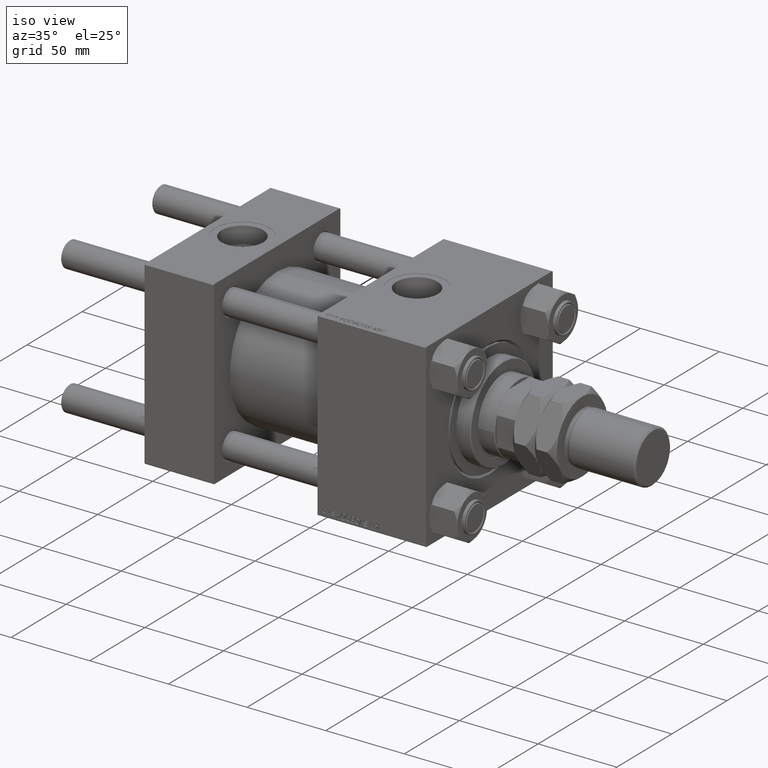
[diagram: clean part render]
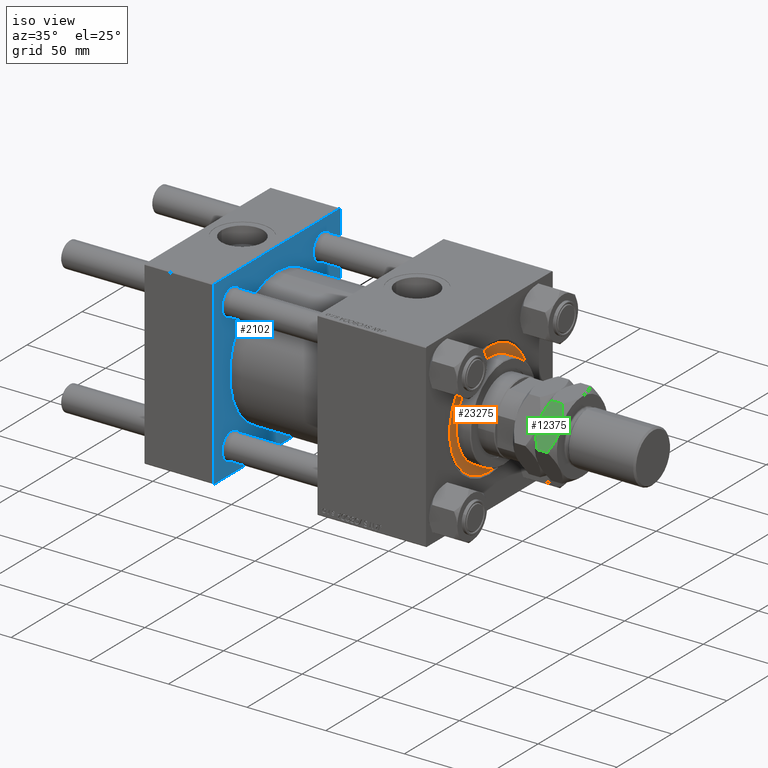
[diagram: same view with three faces highlighted in distinct colors, each labeled with its STEP entity id]
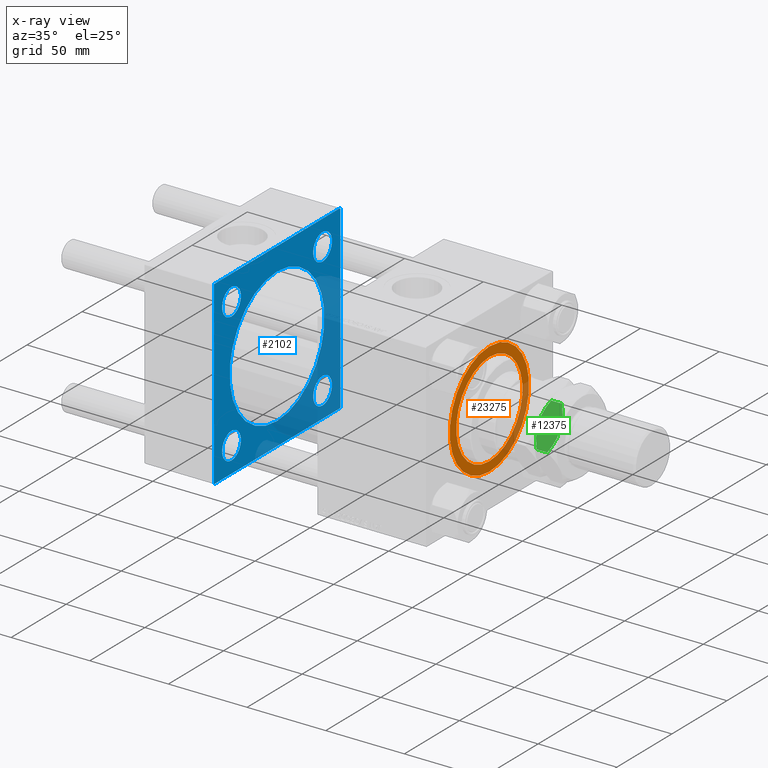
[diagram: x-ray of the same camera — body ghosted, the three highlighted faces saturated]
A machine part, iso view with three faces highlighted in distinct colors.
The next image is the same camera in x-ray (body ghosted, the three faces saturated) — at least one of them is partly hidden behind the body in this view.
Their STEP definitions:

[orange] entity #23275 — the highlighted planar face has unit normal (1, 0, -0).
#34 = ORIENTED_EDGE ( 'NONE', *, *, #8283, .T. ) ;
#1244 = DIRECTION ( 'NONE',  ( 0.000000000000000000, 0.000000000000000000, 1.000000000000000000 ) ) ;
#4501 = VERTEX_POINT ( 'NONE', #34404 ) ;
#4779 = ORIENTED_EDGE ( 'NONE', *, *, #15069, .F. ) ;
#6774 = CIRCLE ( 'NONE', #46811, 30.00000000000000000 ) ;
#6826 = ORIENTED_EDGE ( 'NONE', *, *, #39144, .F. ) ;
#8283 = EDGE_CURVE ( 'NONE', #52019, #4501, #28445, .T. ) ;
#8583 = DIRECTION ( 'NONE',  ( 1.000000000000000000, 0.000000000000000000, 0.000000000000000000 ) ) ;
#8763 = AXIS2_PLACEMENT_3D ( 'NONE', #9388, #34779, #8583 ) ;
#9388 = CARTESIAN_POINT ( 'NONE',  ( 0.000000000000000000, 0.000000000000000000, 28.69999999999999929 ) ) ;
#10204 = AXIS2_PLACEMENT_3D ( 'NONE', #43770, #1244, #10225 ) ;
#10225 = DIRECTION ( 'NONE',  ( 1.000000000000000000, 0.000000000000000000, 0.000000000000000000 ) ) ;
#11852 = CARTESIAN_POINT ( 'NONE',  ( 0.000000000000000000, 0.000000000000000000, 28.69999999999999929 ) ) ;
#13345 = CARTESIAN_POINT ( 'NONE',  ( -36.00000000000000000, 0.000000000000000000, 28.69999999999999929 ) ) ;
#14963 = AXIS2_PLACEMENT_3D ( 'NONE', #39875, #31177, #52673 ) ;
#15069 = EDGE_CURVE ( 'NONE', #16555, #52457, #6774, .T. ) ;
#16555 = VERTEX_POINT ( 'NONE', #25904 ) ;
#21790 = EDGE_CURVE ( 'NONE', #4501, #52019, #44472, .T. ) ;
#22128 = DIRECTION ( 'NONE',  ( 1.000000000000000000, 0.000000000000000000, 0.000000000000000000 ) ) ;
#23275 = ADVANCED_FACE ( 'NONE', ( #47785, #23506 ), #35797, .T. ) ;
#23506 = FACE_OUTER_BOUND ( 'NONE', #41749, .T. ) ;
#23591 = DIRECTION ( 'NONE',  ( 0.000000000000000000, 0.000000000000000000, 1.000000000000000000 ) ) ;
#25904 = CARTESIAN_POINT ( 'NONE',  ( -30.00000000000000000, 0.000000000000000000, 28.69999999999999929 ) ) ;
#28445 = CIRCLE ( 'NONE', #40646, 36.00000000000000000 ) ;
#31177 = DIRECTION ( 'NONE',  ( 0.000000000000000000, 0.000000000000000000, 1.000000000000000000 ) ) ;
#31800 = DIRECTION ( 'NONE',  ( 1.000000000000000000, 0.000000000000000000, 0.000000000000000000 ) ) ;
#33589 = EDGE_LOOP ( 'NONE', ( #4779, #6826 ) ) ;
#33711 = CARTESIAN_POINT ( 'NONE',  ( 30.00000000000000000, 3.673940397442059178E-15, 28.69999999999999929 ) ) ;
#34404 = CARTESIAN_POINT ( 'NONE',  ( 36.00000000000000000, 4.408728476930470856E-15, 28.69999999999999929 ) ) ;
#34779 = DIRECTION ( 'NONE',  ( 0.000000000000000000, 0.000000000000000000, 1.000000000000000000 ) ) ;
#35797 = PLANE ( 'NONE',  #14963 ) ;
#39144 = EDGE_CURVE ( 'NONE', #52457, #16555, #46752, .T. ) ;
#39875 = CARTESIAN_POINT ( 'NONE',  ( 0.000000000000000000, 0.000000000000000000, 28.69999999999999929 ) ) ;
#40646 = AXIS2_PLACEMENT_3D ( 'NONE', #11852, #23591, #31800 ) ;
#41749 = EDGE_LOOP ( 'NONE', ( #34, #43476 ) ) ;
#43476 = ORIENTED_EDGE ( 'NONE', *, *, #21790, .T. ) ;
#43770 = CARTESIAN_POINT ( 'NONE',  ( 0.000000000000000000, 0.000000000000000000, 28.69999999999999929 ) ) ;
#44472 = CIRCLE ( 'NONE', #8763, 36.00000000000000000 ) ;
#46139 = DIRECTION ( 'NONE',  ( 0.000000000000000000, 0.000000000000000000, 1.000000000000000000 ) ) ;
#46752 = CIRCLE ( 'NONE', #10204, 30.00000000000000000 ) ;
#46811 = AXIS2_PLACEMENT_3D ( 'NONE', #46935, #46139, #22128 ) ;
#46935 = CARTESIAN_POINT ( 'NONE',  ( 0.000000000000000000, 0.000000000000000000, 28.69999999999999929 ) ) ;
#47785 = FACE_BOUND ( 'NONE', #33589, .T. ) ;
#52019 = VERTEX_POINT ( 'NONE', #13345 ) ;
#52457 = VERTEX_POINT ( 'NONE', #33711 ) ;
#52673 = DIRECTION ( 'NONE',  ( 1.000000000000000000, 0.000000000000000000, -0.000000000000000000 ) ) ;

[blue] entity #2102 — the highlighted planar face has unit normal (-1, 0, 0).
#342 = ORIENTED_EDGE ( 'NONE', *, *, #38765, .T. ) ;
#1679 = DIRECTION ( 'NONE',  ( 0.000000000000000000, 0.000000000000000000, 1.000000000000000000 ) ) ;
#1681 = EDGE_CURVE ( 'NONE', #26242, #23790, #22949, .T. ) ;
#1959 = ORIENTED_EDGE ( 'NONE', *, *, #28649, .T. ) ;
#2102 = ADVANCED_FACE ( 'NONE', ( #43305, #47670, #39768, #7011, #52038, #14667 ), #26958, .F. ) ;
#2105 = VERTEX_POINT ( 'NONE', #35691 ) ;
#2441 = ORIENTED_EDGE ( 'NONE', *, *, #34334, .T. ) ;
#2583 = VERTEX_POINT ( 'NONE', #45391 ) ;
#2730 = VERTEX_POINT ( 'NONE', #31474 ) ;
#2761 = CARTESIAN_POINT ( 'NONE',  ( 44.00000000000000000, 57.49999999999999289, 57.50000000000000711 ) ) ;
#3014 = VECTOR ( 'NONE', #7091, 1000.000000000000114 ) ;
#3396 = CARTESIAN_POINT ( 'NONE',  ( 44.00000000000000000, 0.000000000000000000, 43.00000000000000000 ) ) ;
#3562 = LINE ( 'NONE', #2761, #39302 ) ;
#3985 = VERTEX_POINT ( 'NONE', #44050 ) ;
#4669 = LINE ( 'NONE', #33348, #22811 ) ;
#5000 = CIRCLE ( 'NONE', #25072, 8.500000000000035527 ) ;
#6022 = CARTESIAN_POINT ( 'NONE',  ( 44.00000000000000000, -41.34999999999998721, 41.35000000000000853 ) ) ;
#6494 = CARTESIAN_POINT ( 'NONE',  ( 44.00000000000000000, 57.00000000000000711, 57.50000000000000711 ) ) ;
#6984 = VERTEX_POINT ( 'NONE', #25055 ) ;
#7011 = FACE_BOUND ( 'NONE', #14302, .T. ) ;
#7091 = DIRECTION ( 'NONE',  ( -0.000000000000000000, -0.7071067811865376918, -0.7071067811865573427 ) ) ;
#7386 = ORIENTED_EDGE ( 'NONE', *, *, #49372, .T. ) ;
#8375 = CIRCLE ( 'NONE', #39606, 8.500000000000035527 ) ;
#8665 = DIRECTION ( 'NONE',  ( -1.000000000000000000, 0.000000000000000000, -0.000000000000000000 ) ) ;
#9750 = CARTESIAN_POINT ( 'NONE',  ( 44.00000000000000000, -57.50000000000000711, 57.49999999999999289 ) ) ;
#10216 = VERTEX_POINT ( 'NONE', #53110 ) ;
#10295 = DIRECTION ( 'NONE',  ( -1.000000000000000000, 0.000000000000000000, -0.000000000000000000 ) ) ;
#10615 = ORIENTED_EDGE ( 'NONE', *, *, #34608, .F. ) ;
#10741 = EDGE_CURVE ( 'NONE', #45350, #3985, #41716, .T. ) ;
#10924 = LINE ( 'NONE', #32491, #3014 ) ;
#11025 = CIRCLE ( 'NONE', #31104, 8.500000000000035527 ) ;
#12401 = DIRECTION ( 'NONE',  ( 1.000000000000000000, -0.000000000000000000, 0.000000000000000000 ) ) ;
#12525 = ORIENTED_EDGE ( 'NONE', *, *, #1681, .T. ) ;
#12555 = VECTOR ( 'NONE', #42770, 1000.000000000000114 ) ;
#12707 = VECTOR ( 'NONE', #39229, 1000.000000000000114 ) ;
#12871 = ORIENTED_EDGE ( 'NONE', *, *, #28888, .T. ) ;
#13076 = EDGE_CURVE ( 'NONE', #22843, #13080, #43244, .T. ) ;
#13080 = VERTEX_POINT ( 'NONE', #20595 ) ;
#13197 = DIRECTION ( 'NONE',  ( -1.000000000000000000, 0.000000000000000000, -0.000000000000000000 ) ) ;
#13837 = CARTESIAN_POINT ( 'NONE',  ( 44.00000000000000000, 57.49999999999999289, -57.49999999999999289 ) ) ;
#13875 = CARTESIAN_POINT ( 'NONE',  ( 44.00000000000000000, 5.265981236333618470E-15, -43.00000000000000000 ) ) ;
#13883 = EDGE_CURVE ( 'NONE', #15571, #26055, #23293, .T. ) ;
#14035 = CARTESIAN_POINT ( 'NONE',  ( 44.00000000000000000, -41.34999999999998721, -41.35000000000000853 ) ) ;
#14149 = ORIENTED_EDGE ( 'NONE', *, *, #20417, .T. ) ;
#14302 = EDGE_LOOP ( 'NONE', ( #342, #12525 ) ) ;
#14667 = FACE_OUTER_BOUND ( 'NONE', #19402, .T. ) ;
#14905 = EDGE_CURVE ( 'NONE', #27125, #6984, #5000, .T. ) ;
#15137 = EDGE_CURVE ( 'NONE', #42847, #10216, #22471, .T. ) ;
#15343 = DIRECTION ( 'NONE',  ( -1.000000000000000000, 0.000000000000000000, -0.000000000000000000 ) ) ;
#15571 = VERTEX_POINT ( 'NONE', #13875 ) ;
#15800 = DIRECTION ( 'NONE',  ( 0.000000000000000000, -1.000000000000000000, -1.206764157201257045E-16 ) ) ;
#17118 = AXIS2_PLACEMENT_3D ( 'NONE', #50551, #13197, #29860 ) ;
#17655 = DIRECTION ( 'NONE',  ( 0.000000000000000000, -1.000000000000000000, -1.206764157201257045E-16 ) ) ;
#17656 = CARTESIAN_POINT ( 'NONE',  ( 44.00000000000000000, 41.34999999999999432, 41.35000000000000142 ) ) ;
#17932 = LINE ( 'NONE', #13837, #53548 ) ;
#18145 = DIRECTION ( 'NONE',  ( -1.000000000000000000, 0.000000000000000000, -0.000000000000000000 ) ) ;
#18582 = ORIENTED_EDGE ( 'NONE', *, *, #13076, .T. ) ;
#18903 = DIRECTION ( 'NONE',  ( 0.000000000000000000, 0.000000000000000000, 1.000000000000000000 ) ) ;
#19402 = EDGE_LOOP ( 'NONE', ( #10615, #1959, #25335, #29308, #29160, #32766, #14149, #7386 ) ) ;
#19524 = CIRCLE ( 'NONE', #49991, 8.500000000000035527 ) ;
#19833 = CARTESIAN_POINT ( 'NONE',  ( 44.00000000000000000, 0.000000000000000000, 0.000000000000000000 ) ) ;
#20417 = EDGE_CURVE ( 'NONE', #32680, #2730, #38683, .T. ) ;
#20595 = CARTESIAN_POINT ( 'NONE',  ( 44.00000000000000000, 41.34999999999999432, -32.84999999999997300 ) ) ;
#22165 = CIRCLE ( 'NONE', #29161, 43.00000000000000000 ) ;
#22221 = EDGE_CURVE ( 'NONE', #2583, #43239, #3562, .T. ) ;
#22471 = CIRCLE ( 'NONE', #47688, 8.500000000000035527 ) ;
#22811 = VECTOR ( 'NONE', #29786, 1000.000000000000114 ) ;
#22843 = VERTEX_POINT ( 'NONE', #53557 ) ;
#22949 = CIRCLE ( 'NONE', #31683, 8.500000000000035527 ) ;
#23293 = CIRCLE ( 'NONE', #37231, 43.00000000000000000 ) ;
#23790 = VERTEX_POINT ( 'NONE', #24067 ) ;
#24067 = CARTESIAN_POINT ( 'NONE',  ( 44.00000000000000000, 41.34999999999999432, 32.84999999999997300 ) ) ;
#24296 = EDGE_CURVE ( 'NONE', #10216, #42847, #41132, .T. ) ;
#24884 = EDGE_LOOP ( 'NONE', ( #12871, #51744 ) ) ;
#25055 = CARTESIAN_POINT ( 'NONE',  ( 44.00000000000000000, -41.34999999999998721, -49.85000000000004405 ) ) ;
#25072 = AXIS2_PLACEMENT_3D ( 'NONE', #52718, #15343, #32020 ) ;
#25335 = ORIENTED_EDGE ( 'NONE', *, *, #22221, .F. ) ;
#26055 = VERTEX_POINT ( 'NONE', #3396 ) ;
#26127 = DIRECTION ( 'NONE',  ( 0.000000000000000000, 0.000000000000000000, 1.000000000000000000 ) ) ;
#26142 = DIRECTION ( 'NONE',  ( -1.000000000000000000, 0.000000000000000000, -0.000000000000000000 ) ) ;
#26242 = VERTEX_POINT ( 'NONE', #38533 ) ;
#26415 = DIRECTION ( 'NONE',  ( 0.000000000000000000, 0.000000000000000000, -1.000000000000000000 ) ) ;
#26958 = PLANE ( 'NONE',  #27347 ) ;
#27125 = VERTEX_POINT ( 'NONE', #44044 ) ;
#27347 = AXIS2_PLACEMENT_3D ( 'NONE', #19833, #10295, #39488 ) ;
#27533 = DIRECTION ( 'NONE',  ( 1.000000000000000000, -0.000000000000000000, 0.000000000000000000 ) ) ;
#27542 = VECTOR ( 'NONE', #15800, 1000.000000000000000 ) ;
#28649 = EDGE_CURVE ( 'NONE', #48461, #43239, #29196, .T. ) ;
#28888 = EDGE_CURVE ( 'NONE', #6984, #27125, #19524, .T. ) ;
#29160 = ORIENTED_EDGE ( 'NONE', *, *, #10741, .T. ) ;
#29161 = AXIS2_PLACEMENT_3D ( 'NONE', #45398, #12401, #33149 ) ;
#29196 = LINE ( 'NONE', #45806, #12555 ) ;
#29308 = ORIENTED_EDGE ( 'NONE', *, *, #36731, .T. ) ;
#29782 = VECTOR ( 'NONE', #26415, 1000.000000000000000 ) ;
#29786 = DIRECTION ( 'NONE',  ( 0.000000000000000000, 0.7071067811865474617, -0.7071067811865474617 ) ) ;
#29860 = DIRECTION ( 'NONE',  ( 0.000000000000000000, 0.000000000000000000, 1.000000000000000000 ) ) ;
#30143 = EDGE_CURVE ( 'NONE', #26055, #15571, #22165, .T. ) ;
#30316 = EDGE_CURVE ( 'NONE', #3985, #32680, #10924, .T. ) ;
#30542 = CARTESIAN_POINT ( 'NONE',  ( 44.00000000000000000, -41.34999999999998721, 49.85000000000004405 ) ) ;
#30890 = DIRECTION ( 'NONE',  ( 0.000000000000000000, 0.000000000000000000, 1.000000000000000000 ) ) ;
#31104 = AXIS2_PLACEMENT_3D ( 'NONE', #17656, #8665, #26127 ) ;
#31158 = CARTESIAN_POINT ( 'NONE',  ( 44.00000000000000000, 57.00000000000002132, -57.49999999999999289 ) ) ;
#31474 = CARTESIAN_POINT ( 'NONE',  ( 44.00000000000000000, -57.50000000000000711, -57.00000000000000711 ) ) ;
#31683 = AXIS2_PLACEMENT_3D ( 'NONE', #39353, #36557, #18903 ) ;
#32020 = DIRECTION ( 'NONE',  ( 0.000000000000000000, 0.000000000000000000, 1.000000000000000000 ) ) ;
#32491 = CARTESIAN_POINT ( 'NONE',  ( 44.00000000000000000, -57.50000000000000711, 57.00000000000000711 ) ) ;
#32680 = VERTEX_POINT ( 'NONE', #39512 ) ;
#32766 = ORIENTED_EDGE ( 'NONE', *, *, #30316, .T. ) ;
#33149 = DIRECTION ( 'NONE',  ( 0.000000000000000000, 0.000000000000000000, 1.000000000000000000 ) ) ;
#33348 = CARTESIAN_POINT ( 'NONE',  ( 44.00000000000000000, -57.00000000000000711, -57.50000000000000711 ) ) ;
#34334 = EDGE_CURVE ( 'NONE', #13080, #22843, #8375, .T. ) ;
#34608 = EDGE_CURVE ( 'NONE', #48461, #2105, #17932, .T. ) ;
#34971 = CARTESIAN_POINT ( 'NONE',  ( 44.00000000000000000, 41.34999999999999432, -41.35000000000000142 ) ) ;
#35476 = EDGE_LOOP ( 'NONE', ( #18582, #2441 ) ) ;
#35691 = CARTESIAN_POINT ( 'NONE',  ( 44.00000000000000000, -57.00000000000000711, -57.50000000000000711 ) ) ;
#36327 = DIRECTION ( 'NONE',  ( 0.000000000000000000, 0.000000000000000000, -1.000000000000000000 ) ) ;
#36557 = DIRECTION ( 'NONE',  ( -1.000000000000000000, 0.000000000000000000, -0.000000000000000000 ) ) ;
#36731 = EDGE_CURVE ( 'NONE', #2583, #45350, #40299, .T. ) ;
#37097 = EDGE_LOOP ( 'NONE', ( #42796, #42808 ) ) ;
#37231 = AXIS2_PLACEMENT_3D ( 'NONE', #53134, #27533, #40593 ) ;
#38533 = CARTESIAN_POINT ( 'NONE',  ( 44.00000000000000000, 41.34999999999999432, 49.85000000000003695 ) ) ;
#38683 = LINE ( 'NONE', #9750, #29782 ) ;
#38765 = EDGE_CURVE ( 'NONE', #23790, #26242, #11025, .T. ) ;
#39128 = CARTESIAN_POINT ( 'NONE',  ( 44.00000000000000000, 57.49999999999999289, -57.00000000000000711 ) ) ;
#39229 = DIRECTION ( 'NONE',  ( 0.000000000000000000, -0.7071067811865573427, 0.7071067811865376918 ) ) ;
#39302 = VECTOR ( 'NONE', #36327, 1000.000000000000000 ) ;
#39353 = CARTESIAN_POINT ( 'NONE',  ( 44.00000000000000000, 41.34999999999999432, 41.35000000000000142 ) ) ;
#39488 = DIRECTION ( 'NONE',  ( -0.000000000000000000, 0.000000000000000000, 1.000000000000000000 ) ) ;
#39512 = CARTESIAN_POINT ( 'NONE',  ( 44.00000000000000000, -57.50000000000000711, 57.00000000000000711 ) ) ;
#39545 = CARTESIAN_POINT ( 'NONE',  ( 44.00000000000000000, 57.00000000000000711, 57.50000000000000711 ) ) ;
#39606 = AXIS2_PLACEMENT_3D ( 'NONE', #34971, #51589, #30890 ) ;
#39768 = FACE_BOUND ( 'NONE', #37097, .T. ) ;
#40299 = LINE ( 'NONE', #6494, #12707 ) ;
#40593 = DIRECTION ( 'NONE',  ( 0.000000000000000000, 0.000000000000000000, 1.000000000000000000 ) ) ;
#41132 = CIRCLE ( 'NONE', #49841, 8.500000000000035527 ) ;
#41716 = LINE ( 'NONE', #44724, #27542 ) ;
#42759 = DIRECTION ( 'NONE',  ( 0.000000000000000000, 0.000000000000000000, 1.000000000000000000 ) ) ;
#42770 = DIRECTION ( 'NONE',  ( -0.000000000000000000, 0.7071067811865376918, 0.7071067811865573427 ) ) ;
#42796 = ORIENTED_EDGE ( 'NONE', *, *, #24296, .T. ) ;
#42808 = ORIENTED_EDGE ( 'NONE', *, *, #15137, .T. ) ;
#42847 = VERTEX_POINT ( 'NONE', #30542 ) ;
#43226 = DIRECTION ( 'NONE',  ( 0.000000000000000000, 0.000000000000000000, 1.000000000000000000 ) ) ;
#43239 = VERTEX_POINT ( 'NONE', #39128 ) ;
#43244 = CIRCLE ( 'NONE', #17118, 8.500000000000035527 ) ;
#43305 = FACE_BOUND ( 'NONE', #24884, .T. ) ;
#44044 = CARTESIAN_POINT ( 'NONE',  ( 44.00000000000000000, -41.34999999999998721, -32.84999999999997300 ) ) ;
#44050 = CARTESIAN_POINT ( 'NONE',  ( 44.00000000000000000, -57.00000000000003553, 57.49999999999999289 ) ) ;
#44724 = CARTESIAN_POINT ( 'NONE',  ( 44.00000000000000000, 57.49999999999999289, 57.50000000000000711 ) ) ;
#45350 = VERTEX_POINT ( 'NONE', #39545 ) ;
#45391 = CARTESIAN_POINT ( 'NONE',  ( 44.00000000000000000, 57.49999999999999289, 57.00000000000003553 ) ) ;
#45398 = CARTESIAN_POINT ( 'NONE',  ( 44.00000000000000000, 0.000000000000000000, 0.000000000000000000 ) ) ;
#45806 = CARTESIAN_POINT ( 'NONE',  ( 44.00000000000000000, 57.49999999999999289, -57.00000000000000711 ) ) ;
#46759 = EDGE_LOOP ( 'NONE', ( #48385, #52077 ) ) ;
#47670 = FACE_BOUND ( 'NONE', #35476, .T. ) ;
#47688 = AXIS2_PLACEMENT_3D ( 'NONE', #6022, #52126, #1679 ) ;
#48385 = ORIENTED_EDGE ( 'NONE', *, *, #30143, .F. ) ;
#48461 = VERTEX_POINT ( 'NONE', #31158 ) ;
#49372 = EDGE_CURVE ( 'NONE', #2730, #2105, #4669, .T. ) ;
#49841 = AXIS2_PLACEMENT_3D ( 'NONE', #51218, #26142, #42759 ) ;
#49991 = AXIS2_PLACEMENT_3D ( 'NONE', #14035, #18145, #43226 ) ;
#50551 = CARTESIAN_POINT ( 'NONE',  ( 44.00000000000000000, 41.34999999999999432, -41.35000000000000142 ) ) ;
#51218 = CARTESIAN_POINT ( 'NONE',  ( 44.00000000000000000, -41.34999999999998721, 41.35000000000000853 ) ) ;
#51589 = DIRECTION ( 'NONE',  ( -1.000000000000000000, 0.000000000000000000, -0.000000000000000000 ) ) ;
#51744 = ORIENTED_EDGE ( 'NONE', *, *, #14905, .T. ) ;
#52038 = FACE_BOUND ( 'NONE', #46759, .T. ) ;
#52077 = ORIENTED_EDGE ( 'NONE', *, *, #13883, .F. ) ;
#52126 = DIRECTION ( 'NONE',  ( -1.000000000000000000, 0.000000000000000000, -0.000000000000000000 ) ) ;
#52718 = CARTESIAN_POINT ( 'NONE',  ( 44.00000000000000000, -41.34999999999998721, -41.35000000000000853 ) ) ;
#53110 = CARTESIAN_POINT ( 'NONE',  ( 44.00000000000000000, -41.34999999999998721, 32.84999999999997300 ) ) ;
#53134 = CARTESIAN_POINT ( 'NONE',  ( 44.00000000000000000, 0.000000000000000000, 0.000000000000000000 ) ) ;
#53548 = VECTOR ( 'NONE', #17655, 1000.000000000000000 ) ;
#53557 = CARTESIAN_POINT ( 'NONE',  ( 44.00000000000000000, 41.34999999999999432, -49.85000000000003695 ) ) ;

[green] entity #12375 — the highlighted planar face has unit normal (-0, 0.866, -0.5).
#326 = DIRECTION ( 'NONE',  ( 0.5000000000000003331, 0.8660254037844385966, -0.000000000000000000 ) ) ;
#716 = LINE ( 'NONE', #13791, #29108 ) ;
#1092 = EDGE_LOOP ( 'NONE', ( #43961, #26377, #36726, #1905, #7585, #51767 ) ) ;
#1905 = ORIENTED_EDGE ( 'NONE', *, *, #8011, .F. ) ;
#2118 = CARTESIAN_POINT ( 'NONE',  ( -6.513252209336783949, -22.79768446636225576, 14.68627580135475519 ) ) ;
#2298 = EDGE_CURVE ( 'NONE', #48042, #20806, #716, .T. ) ;
#2654 = CARTESIAN_POINT ( 'NONE',  ( -19.35245248169771060, -15.38496873293516920, 26.36778857186890335 ) ) ;
#2868 = CARTESIAN_POINT ( 'NONE',  ( -11.49999999999999467, -19.91858428704209416, 14.00000000000000000 ) ) ;
#3460 = CARTESIAN_POINT ( 'NONE',  ( -15.51476468404854714, -17.60065881597365944, 27.56483616389684244 ) ) ;
#3963 = CARTESIAN_POINT ( 'NONE',  ( 1.709722276742338234E-15, -26.55811238272278985, 17.55811238272278274 ) ) ;
#4813 = LINE ( 'NONE', #12750, #44047 ) ;
#5344 = B_SPLINE_CURVE_WITH_KNOTS ( 'NONE', 3,
 ( #53269, #36922, #41265, #28752, #53547, #44541, #24908, #49166 ),
 .UNSPECIFIED., .F., .F.,
 ( 4, 2, 2, 4 ),
 ( 0.01376519981810309969, 0.02059946815584628999, 0.02401660232471788253, 0.02743373649358947855 ),
 .UNSPECIFIED. ) ;
#6955 = CARTESIAN_POINT ( 'NONE',  ( -18.37513248879265859, -15.94922469392330555, 15.30784375106604323 ) ) ;
#7253 = VERTEX_POINT ( 'NONE', #32930 ) ;
#7543 = CARTESIAN_POINT ( 'NONE',  ( -21.19663298550257835, -14.32023062262917179, 25.48306204854501189 ) ) ;
#7585 = ORIENTED_EDGE ( 'NONE', *, *, #32783, .T. ) ;
#8011 = EDGE_CURVE ( 'NONE', #42288, #30466, #30501, .T. ) ;
#8374 = DIRECTION ( 'NONE',  ( -0.000000000000000000, -0.000000000000000000, -1.000000000000000000 ) ) ;
#10287 = CARTESIAN_POINT ( 'NONE',  ( -11.49999999999999467, -19.91858428704209416, 14.00000000000000000 ) ) ;
#10553 = CARTESIAN_POINT ( 'NONE',  ( -10.99639501427889066, -20.20934076111341327, 14.00000000000001243 ) ) ;
#11863 = CARTESIAN_POINT ( 'NONE',  ( -19.32386580747566640, -15.40147325699251013, 15.69106848873859050 ) ) ;
#12074 = EDGE_CURVE ( 'NONE', #38370, #7253, #50361, .T. ) ;
#12375 = ADVANCED_FACE ( 'NONE', ( #27378 ), #23287, .F. ) ;
#12750 = CARTESIAN_POINT ( 'NONE',  ( -23.00000000000000000, -13.27905619136138959, 28.00000000000000000 ) ) ;
#13791 = CARTESIAN_POINT ( 'NONE',  ( 3.419413258936889517E-15, -26.55811238272278985, 28.00000000000000000 ) ) ;
#15361 = AXIS2_PLACEMENT_3D ( 'NONE', #50486, #326, #16147 ) ;
#16147 = DIRECTION ( 'NONE',  ( -0.8660254037844384856, 0.5000000000000002220, 0.000000000000000000 ) ) ;
#18206 = CARTESIAN_POINT ( 'NONE',  ( -1.803367014497423648, -25.51693795145500943, 16.51693795145499877 ) ) ;
#18476 = CARTESIAN_POINT ( 'NONE',  ( -3.647547518302289404, -24.45219984114901379, 15.63221142813110731 ) ) ;
#19555 = CARTESIAN_POINT ( 'NONE',  ( -14.02580821503728181, -18.46030823416894151, 27.82274339568302679 ) ) ;
#20086 = CARTESIAN_POINT ( 'NONE',  ( -11.50000000000000533, -19.91858428704208706, 28.00000000000000000 ) ) ;
#20806 = VERTEX_POINT ( 'NONE', #3963 ) ;
#22019 = EDGE_CURVE ( 'NONE', #30466, #48042, #5344, .T. ) ;
#23133 = CARTESIAN_POINT ( 'NONE',  ( -7.485235315951451085, -22.23650975811052888, 14.43516383610316112 ) ) ;
#23287 = PLANE ( 'NONE',  #15361 ) ;
#24146 = CARTESIAN_POINT ( 'NONE',  ( -13.50031108690880721, -18.76370414255229235, 14.00000000000000355 ) ) ;
#24908 = CARTESIAN_POINT ( 'NONE',  ( -0.9006392137919259078, -26.03812809019728647, 24.96187190980275972 ) ) ;
#26377 = ORIENTED_EDGE ( 'NONE', *, *, #2298, .F. ) ;
#27341 = CARTESIAN_POINT ( 'NONE',  ( -11.49999999999999467, -19.91858428704209416, 14.00000000000000000 ) ) ;
#27378 = FACE_OUTER_BOUND ( 'NONE', #1092, .T. ) ;
#27769 = CARTESIAN_POINT ( 'NONE',  ( -16.48674779066321250, -17.03948410772190414, 27.31372419864523593 ) ) ;
#28029 = CARTESIAN_POINT ( 'NONE',  ( -12.00360498572111467, -19.62782781297077150, 28.00000000000000000 ) ) ;
#28525 = CARTESIAN_POINT ( 'NONE',  ( -22.09936078620807365, -13.79904048388689475, 17.03812809019723318 ) ) ;
#28752 = CARTESIAN_POINT ( 'NONE',  ( -4.624867511207331638, -23.88794388016088632, 26.69215624893395500 ) ) ;
#29108 = VECTOR ( 'NONE', #42440, 1000.000000000000000 ) ;
#29496 = B_SPLINE_CURVE_WITH_KNOTS ( 'NONE', 3,
 ( #47658, #18206, #18476, #2118, #23133, #35131, #47927, #51748, #10553, #10287 ),
 .UNSPECIFIED., .F., .F.,
 ( 4, 2, 2, 2, 4 ),
 ( 2.544306848989127910E-07, 0.006882727124394002853, 0.01032396347124855777, 0.01204458164467583220, 0.01376519981810310662 ),
 .UNSPECIFIED. ) ;
#30466 = VERTEX_POINT ( 'NONE', #41724 ) ;
#30501 = B_SPLINE_CURVE_WITH_KNOTS ( 'NONE', 3,
 ( #49266, #7543, #2654, #27769, #3460, #19555, #44374, #36221, #28029, #20086 ),
 .UNSPECIFIED., .F., .F.,
 ( 4, 2, 2, 2, 4 ),
 ( 2.544306848942777738E-07, 0.006882727124394002853, 0.01032396347124855430, 0.01204458164467582700, 0.01376519981810309969 ),
 .UNSPECIFIED. ) ;
#32783 = EDGE_CURVE ( 'NONE', #42288, #7253, #4813, .T. ) ;
#32930 = CARTESIAN_POINT ( 'NONE',  ( -23.00000000000000000, -13.27905619136138959, 17.55811238272277564 ) ) ;
#34633 = EDGE_CURVE ( 'NONE', #20806, #38370, #29496, .T. ) ;
#35131 = CARTESIAN_POINT ( 'NONE',  ( -8.974191784962716412, -21.37686033991523971, 14.17725660431697499 ) ) ;
#36221 = CARTESIAN_POINT ( 'NONE',  ( -12.51003418050900962, -19.33544078103449237, 27.97785245724465852 ) ) ;
#36726 = ORIENTED_EDGE ( 'NONE', *, *, #22019, .F. ) ;
#36922 = CARTESIAN_POINT ( 'NONE',  ( -9.499688913091185682, -21.07346443153188531, 27.99999999999999645 ) ) ;
#38370 = VERTEX_POINT ( 'NONE', #27341 ) ;
#39973 = CARTESIAN_POINT ( 'NONE',  ( -15.46660869709777941, -17.62846168800276558, 14.35317254909357665 ) ) ;
#40502 = CARTESIAN_POINT ( 'NONE',  ( -23.00000000000000000, -13.27905619136138959, 17.55811238272277564 ) ) ;
#41034 = CARTESIAN_POINT ( 'NONE',  ( -21.18561130058603936, -14.32659399538265887, 16.55607787929224983 ) ) ;
#41265 = CARTESIAN_POINT ( 'NONE',  ( -7.533391302902213482, -22.20870688608140497, 27.64682745090640381 ) ) ;
#41724 = CARTESIAN_POINT ( 'NONE',  ( -11.50000000000000533, -19.91858428704208706, 28.00000000000000000 ) ) ;
#42288 = VERTEX_POINT ( 'NONE', #44535 ) ;
#42440 = DIRECTION ( 'NONE',  ( -0.000000000000000000, -0.000000000000000000, -1.000000000000000000 ) ) ;
#43961 = ORIENTED_EDGE ( 'NONE', *, *, #34633, .F. ) ;
#44047 = VECTOR ( 'NONE', #8374, 1000.000000000000000 ) ;
#44374 = CARTESIAN_POINT ( 'NONE',  ( -13.52432111410265314, -18.74984194688868300, 27.88890122221209822 ) ) ;
#44535 = CARTESIAN_POINT ( 'NONE',  ( -23.00000000000000000, -13.27905619136138959, 24.44188761727722436 ) ) ;
#44541 = CARTESIAN_POINT ( 'NONE',  ( -1.814388699413963746, -25.51057457870151524, 25.44392212070774661 ) ) ;
#46467 = CARTESIAN_POINT ( 'NONE',  ( -1.934533906329143444E-16, -26.55811238272279340, 24.44188761727721726 ) ) ;
#47658 = CARTESIAN_POINT ( 'NONE',  ( 1.709722276742338234E-15, -26.55811238272278985, 17.55811238272278274 ) ) ;
#47927 = CARTESIAN_POINT ( 'NONE',  ( -9.475678885897348636, -21.08732662719550532, 14.11109877778791066 ) ) ;
#48042 = VERTEX_POINT ( 'NONE', #46467 ) ;
#49166 = CARTESIAN_POINT ( 'NONE',  ( -1.934533906329143444E-16, -26.55811238272279340, 24.44188761727721726 ) ) ;
#49266 = CARTESIAN_POINT ( 'NONE',  ( -23.00000000000000000, -13.27905619136138959, 24.44188761727722436 ) ) ;
#50361 = B_SPLINE_CURVE_WITH_KNOTS ( 'NONE', 3,
 ( #2868, #24146, #39973, #6955, #11863, #41034, #28525, #40502 ),
 .UNSPECIFIED., .F., .F.,
 ( 4, 2, 2, 4 ),
 ( 0.01376519981810310662, 0.02059946815584628999, 0.02401660232471788253, 0.02743373649358947508 ),
 .UNSPECIFIED. ) ;
#50486 = CARTESIAN_POINT ( 'NONE',  ( -23.00000000000000000, -13.27905619136138959, 28.00000000000000000 ) ) ;
#51748 = CARTESIAN_POINT ( 'NONE',  ( -10.48996581949099038, -20.50172779304969950, 14.02214754275535213 ) ) ;
#51767 = ORIENTED_EDGE ( 'NONE', *, *, #12074, .F. ) ;
#53269 = CARTESIAN_POINT ( 'NONE',  ( -11.50000000000000533, -19.91858428704208706, 28.00000000000000000 ) ) ;
#53547 = CARTESIAN_POINT ( 'NONE',  ( -3.676134192524336264, -24.43569531709167464, 26.30893151126140950 ) ) ;